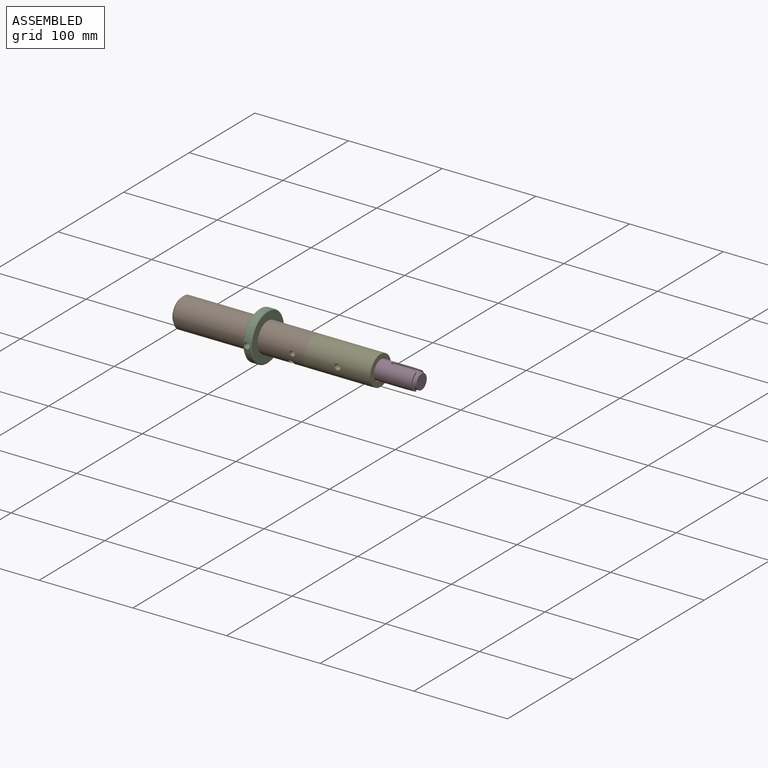
[diagram: assembled view]
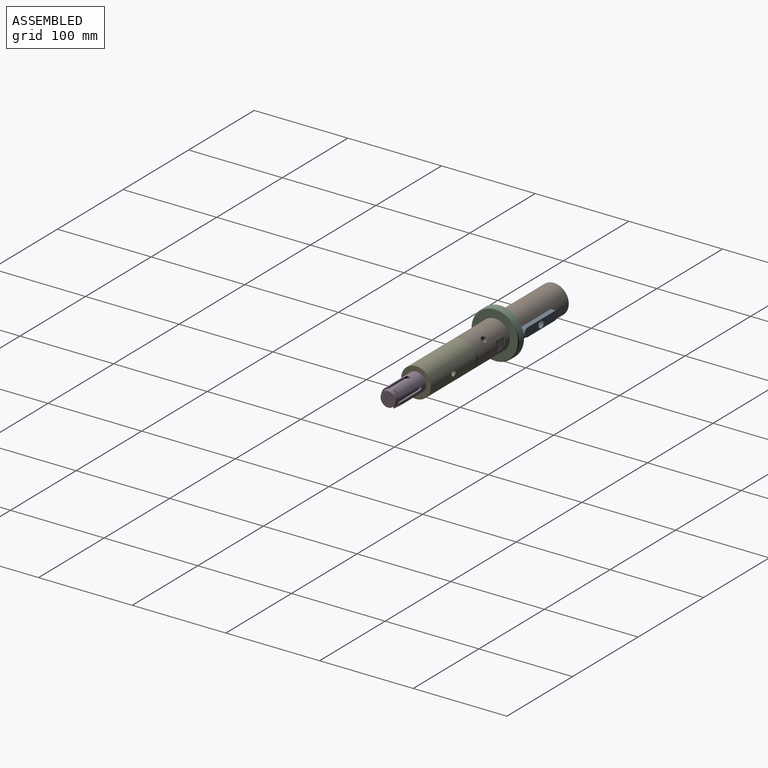
[diagram: assembled view, second angle]
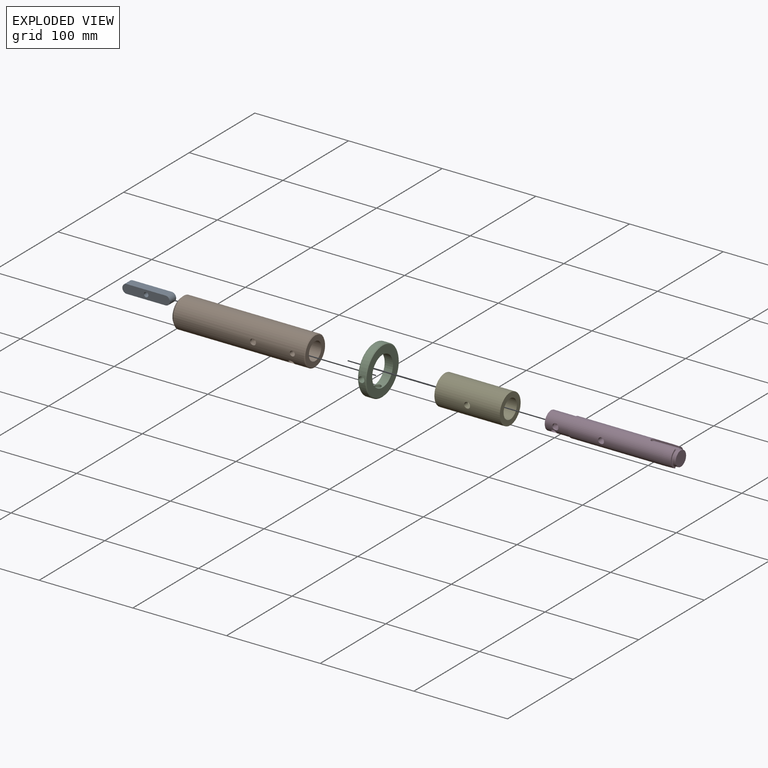
[diagram: exploded view]
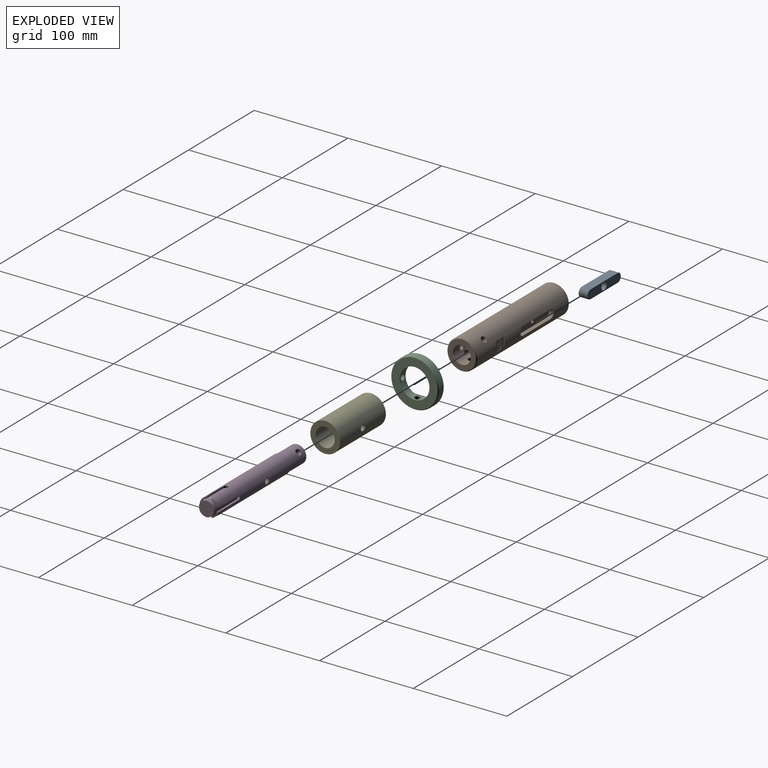
[diagram: exploded view, second angle]
ASSEMBLY  parts=5 mates=7
PART A: 9 faces, bbox 50.8x9.5x9.5 mm
  f0: plane 42.57x9.49mm, normal (0,1,0), area 403.8mm2, adj f1,f3,f4,f5
  f1: cylinder r=4.78mm len=9.49mm, axis (0,0,-1), area 129.9mm2, adj f0,f2,f4,f5
  f2: plane 42.57x9.49mm, normal (0,-1,0), area 403.8mm2, adj f1,f3,f4,f5
  f3: cylinder r=4.78mm len=9.49mm, axis (0,0,-1), area 129.9mm2, adj f0,f2,f4,f5
  f4: plane 50.8x9.47mm, normal (0,0,1), area 444.2mm2, adj f0,f1,f2,f3,f8
  f5: plane 50.8x9.47mm, normal (0,0,-1), area 413.8mm2, adj f0,f1,f2,f3,f6
  f6: cylinder r=3.94mm len=7.87mm, axis (0,0,-1), area 129.7mm2, adj f5,f7
  f7: plane 7.87x7.87mm, normal (0,0,-1), area 30.4mm2, adj f6,f8
  f8: cylinder r=2.41mm len=4.83mm, axis (0,0,-1), area 64.3mm2, adj f4,f7
PART B: 65 faces, bbox 143x31.8x31.8 mm
  f0: cylinder r=15.88mm len=139.7mm, axis (-1,0,0), area 13146.7mm2, adj f2,f3,f6,f7,f8,f9,f11,f12
  f1: cylinder r=9.53mm len=25.4mm, axis (1,0,0), area 1409.6mm2, adj f3,f4,f12,f13,f61,f62
  f2: plane 12.7x11.18mm, normal (0,1,0), area 105.7mm2, adj f0,f14,f15,f16,f17,f18,f19,f20
  f3: cylinder r=3.17mm len=9.37mm, axis (0,-0.71,-0.71), area 128.9mm2, adj f0,f1
  f4: plane 30.23x30.23mm, normal (1,0,0), area 432.5mm2, adj f1,f56
  f5: plane 26.67x26.67mm, normal (-1,0,0), area 558.6mm2, adj f11
  f6: plane 42.57x4.36mm, normal (0,0,-1), area 185.5mm2, adj f0,f7,f9,f10
  f7: cylinder r=4.78mm len=9.47mm, axis (0,1,0), area 65mm2, adj f0,f6,f8,f10
  f8: plane 42.57x4.36mm, normal (0,0,1), area 185.5mm2, adj f0,f7,f9,f10
  f9: cylinder r=4.78mm len=9.47mm, axis (0,1,0), area 65mm2, adj f0,f6,f8,f10
  f10: plane 50.8x9.47mm, normal (0,1,0), area 453.1mm2, adj f6,f7,f8,f9,f64
  f11: cone r=15.88mm half-angle=45deg, axis (1,0,0), area 329.6mm2, adj f0,f5
  f12: cylinder r=3.17mm len=9.37mm, axis (0,-0.71,-0.71), area 128.9mm2, adj f0,f1
  f13: plane 19.05x19.05mm, normal (1,0,0), area 285mm2, adj f1
  f14: plane 11.18x1.02mm, normal (-1,0,0), area 7.6mm2, adj f0,f2
  f15: plane 11.18x1.02mm, normal (1,0,0), area 7.6mm2, adj f0,f2
  f16: plane 0.92x0.25mm, normal (0,0,1), area 0.2mm2, adj f2,f17,f35,f36
  f17: extruded ~2.14x0.36mm, area 0.6mm2, adj f2,f16,f18,f36
  f18: extruded ~2.03x0.57mm, area 0.5mm2, adj f2,f17,f19,f36
  f19: extruded ~1.56x0.72mm, area 0.5mm2, adj f2,f18,f20,f36
  f20: extruded ~1.24x0.43mm, area 0.3mm2, adj f2,f19,f21,f36
  f21: extruded ~1.7x0.94mm, area 0.5mm2, adj f2,f20,f22,f36
  f22: extruded ~1.4x0.69mm, area 0.4mm2, adj f2,f21,f23,f36
  f23: extruded ~0.85x0.34mm, area 0.2mm2, adj f2,f22,f24,f36
  f24: extruded ~1.51x1.08mm, area 0.5mm2, adj f2,f23,f25,f36
  f25: extruded ~1.86x0.4mm, area 0.5mm2, adj f2,f24,f26,f36
  f26: plane 0.85x0.33mm, normal (0.36,0,-0.93), area 0.2mm2, adj f2,f25,f27,f36
  f27: extruded ~2.15x0.4mm, area 0.6mm2, adj f2,f26,f28,f36
  f28: extruded ~1.82x0.51mm, area 0.5mm2, adj f2,f27,f29,f36
  f29: extruded ~1.41x0.66mm, area 0.4mm2, adj f2,f28,f30,f36
  f30: extruded ~1.36x0.47mm, area 0.4mm2, adj f2,f29,f31,f36
  f31: extruded ~1.54x0.9mm, area 0.5mm2, adj f2,f30,f32,f36
  f32: extruded ~1.48x0.69mm, area 0.4mm2, adj f2,f31,f33,f36
  f33: extruded ~0.83x0.36mm, area 0.2mm2, adj f2,f32,f34,f36
  f34: extruded ~1.81x1.24mm, area 0.6mm2, adj f2,f33,f35,f36
  f35: extruded ~2.14x0.44mm, area 0.6mm2, adj f2,f16,f34,f36
  f36: plane 7.77x4.89mm, normal (0,1,0), area 14.4mm2, adj f16,f17,f18,f19,f20,f21,f22,f23
  f37: plane 0.8x0.25mm, normal (1,0,0), area 0.2mm2, adj f2,f38,f54,f55
  f38: plane 6.61x1.44mm, normal (0.21,0,-0.98), area 1.7mm2, adj f2,f37,f39,f55
  f39: plane 0.25x0.04mm, normal (1,0,0), area 0mm2, adj f2,f38,f40,f55
  f40: extruded ~2.1x0.25mm, area 0.5mm2, adj f2,f39,f41,f55
  f41: plane 4.52x0.25mm, normal (0,0,1), area 1.1mm2, adj f2,f40,f42,f55
  f42: plane 0.78x0.25mm, normal (1,0,0), area 0.2mm2, adj f2,f41,f43,f55
  f43: plane 7.56x0.25mm, normal (0,0,-1), area 1.9mm2, adj f2,f42,f44,f55
  f44: plane 1.28x0.25mm, normal (-1,0,0), area 0.3mm2, adj f2,f43,f45,f55
  f45: plane 6.16x1.28mm, normal (-0.2,0,0.98), area 1.6mm2, adj f2,f44,f46,f55
  f46: plane 0.25x0.03mm, normal (-1,0,0), area 0mm2, adj f2,f45,f47,f55
  f47: plane 6.16x1.29mm, normal (-0.21,0,-0.98), area 1.6mm2, adj f2,f46,f48,f55
  f48: plane 1.3x0.25mm, normal (-1,0,0), area 0.3mm2, adj f2,f47,f49,f55
  f49: plane 7.56x0.25mm, normal (0,0,1), area 1.9mm2, adj f2,f48,f50,f55
  f50: plane 0.79x0.25mm, normal (1,0,0), area 0.2mm2, adj f2,f49,f51,f55
  f51: plane 4.58x0.25mm, normal (0,0,-1), area 1.2mm2, adj f2,f50,f52,f55
  f52: extruded ~2.02x0.25mm, area 0.5mm2, adj f2,f51,f53,f55
  f53: plane 0.25x0.04mm, normal (1,0,0), area 0mm2, adj f2,f52,f54,f55
  f54: plane 6.6x1.46mm, normal (0.22,0,0.98), area 1.7mm2, adj f2,f37,f53,f55
  f55: plane 7.56x5.18mm, normal (0,1,0), area 21.9mm2, adj f37,f38,f39,f40,f41,f42,f43,f44
  f56: cone r=15.11mm half-angle=45deg, axis (-1,0,0), area 104.9mm2, adj f0,f4
  f57: cylinder r=3.17mm len=6.35mm, axis (0,0,-1), area 53.9mm2, adj f0,f58
  f58: cone r=0mm half-angle=59deg, axis (0,0,-1), area 36.9mm2, adj f57
  f59: cylinder r=3.17mm len=6.35mm, axis (0,-1,0), area 53.9mm2, adj f0,f60
  f60: cone r=0mm half-angle=59deg, axis (0,-1,0), area 36.9mm2, adj f59
  f61: cylinder r=2.71mm len=6.74mm, axis (0,0,-1), area 109.3mm2, adj f0,f1
  f62: cylinder r=2.71mm len=6.74mm, axis (0,-1,0), area 109.3mm2, adj f0,f1
  f63: cone r=0mm half-angle=59deg, axis (0,1,0), area 10.9mm2, adj f64
  f64: cylinder r=1.73mm len=7.88mm, axis (0,1,0), area 85.5mm2, adj f10,f63
PART C: 8 faces, bbox 8.9x50.8x50.8 mm
  f0: cylinder r=15.88mm len=31.75mm, axis (-1,0,0), area 822.9mm2, adj f2,f3,f4,f5
  f1: cylinder r=25.4mm len=50.8mm, axis (-1,0,0), area 1112.2mm2, adj f4,f5,f6,f7
  f2: plane 49.28x49.28mm, normal (1,0,0), area 1115.3mm2, adj f0,f7
  f3: plane 49.28x49.28mm, normal (-1,0,0), area 1115.3mm2, adj f0,f6
  f4: cylinder r=3.17mm len=9.85mm, axis (0,-1,0), area 191.2mm2, adj f0,f1
  f5: cylinder r=3.17mm len=9.85mm, axis (0,0,1), area 191.2mm2, adj f0,f1
  f6: cone r=25.4mm half-angle=45deg, axis (1,0,0), area 169.4mm2, adj f1,f3
  f7: cone r=24.64mm half-angle=45deg, axis (-1,0,0), area 169.4mm2, adj f1,f2
PART D: 33 faces, bbox 138.7x20.4x20.4 mm
  f0: cylinder r=9.53mm len=25.4mm, axis (1,0,0), area 1387.9mm2, adj f12,f15,f17,f29,f31
  f1: plane 7.1x6.66mm, normal (1,0,0), area 11.2mm2, adj f5,f9,f11,f27
  f2: cylinder r=10.16mm len=100.6mm, axis (1,0,0), area 6056.8mm2, adj f5,f6,f7,f8,f9,f10,f15,f16
  f3: plane 7.05x6.5mm, normal (1,0,0), area 11mm2, adj f7,f10,f11,f26
  f4: plane 18.96x7.11mm, normal (1,0,0), area 28.4mm2, adj f6,f8,f11,f28
  f5: plane 25.41x1.91mm, normal (0.01,0,-1), area 45.3mm2, adj f1,f2,f11,f18,f19,f27
  f6: plane 25.38x1.91mm, normal (0.01,0,1), area 45.3mm2, adj f2,f4,f18,f19,f20,f28
  f7: plane 25.39x1.92mm, normal (0.02,0,-1), area 44.7mm2, adj f2,f3,f11,f21,f22,f26
  f8: plane 25.4x1.9mm, normal (0.01,0,1), area 45.9mm2, adj f2,f4,f11,f21,f22,f28
  f9: plane 31.66x2.07mm, normal (0.01,-1,0), area 61.4mm2, adj f1,f2,f11,f23,f24,f27
  f10: plane 31.55x2.07mm, normal (0.01,1,0), area 61.4mm2, adj f2,f3,f23,f24,f25,f26
  f11: torus R=8.69mm, axis (1,0,0), area 49.8mm2, adj f1,f3,f4,f5,f7,f8,f9,f14
  f12: plane 19.05x19.05mm, normal (-1,0,0), area 285mm2, adj f0
  f13: plane 15.85x15.85mm, normal (1,0,0), area 197.3mm2, adj f14
  f14: cylinder r=7.92mm len=15.85mm, axis (1,0,0), area 151.8mm2, adj f11,f13
  f15: plane 20.32x20.32mm, normal (-1,0,0), area 39.3mm2, adj f0,f2
  f16: cylinder r=3.17mm len=20.32mm, axis (0,0,-1), area 395.3mm2, adj f2
  f17: cylinder r=3.17mm len=17.96mm, axis (0,0.71,-0.71), area 369.2mm2, adj f0
  f18: cylinder r=2.6mm len=5.21mm, axis (0,1,0), area 16.7mm2, adj f2,f5,f6,f19
  f19: plane 28.57x5.92mm, normal (0,1,0), area 153.5mm2, adj f5,f6,f11,f18,f20
  f20: plane 0.23x0.03mm, normal (0,0,1), area 0mm2, adj f6,f11,f19
  f21: cylinder r=2.6mm len=5.21mm, axis (0,-1,0), area 16.8mm2, adj f2,f7,f8,f22
  f22: plane 28.57x5.92mm, normal (0,-1,0), area 153.5mm2, adj f7,f8,f11,f21
  f23: cylinder r=1.96mm len=3.81mm, axis (0,0,1), area 11.2mm2, adj f2,f9,f10,f24
  f24: plane 33.59x4.7mm, normal (0,0,1), area 140mm2, adj f9,f10,f11,f23,f25
  f25: plane 0.42x0.11mm, normal (0,1,0), area 0mm2, adj f10,f11,f24
  f26: revolved ~8.87x7.82mm, area 92mm2, adj f2,f3,f7,f10
  f27: revolved ~8.87x7.62mm, area 93.3mm2, adj f1,f2,f5,f9
  f28: revolved ~19.56x8.87mm, area 228.8mm2, adj f2,f4,f6,f8
  f29: cylinder r=3.26mm len=6.53mm, axis (0,0,-1), area 46.2mm2, adj f0,f30
  f30: cone r=0mm half-angle=59deg, axis (0,0,-1), area 39mm2, adj f29
  f31: cylinder r=3.26mm len=6.53mm, axis (0,1,0), area 46.2mm2, adj f0,f32
  f32: cone r=0mm half-angle=59deg, axis (0,1,0), area 39mm2, adj f31
PART E: 6 faces, bbox 31.8x69.9x31.8 mm
  f0: cylinder r=10.16mm len=69.85mm, axis (0,1,0), area 4394.9mm2, adj f2,f3,f4,f5
  f1: cylinder r=15.88mm len=69.85mm, axis (0,1,0), area 6903.7mm2, adj f2,f3,f4,f5
  f2: plane 31.75x31.75mm, normal (0,-1,0), area 467.4mm2, adj f0,f1
  f3: plane 31.75x31.75mm, normal (0,1,0), area 467.4mm2, adj f0,f1
  f4: cylinder r=3.17mm len=6.35mm, axis (0,0,1), area 115.9mm2, adj f0,f1
  f5: cylinder r=3.17mm len=6.35mm, axis (0,0,1), area 115.9mm2, adj f0,f1
PLACE A rot(axis=(1,0,0),90deg) t=(169.75,-4.61,-16.43)mm
PLACE B rot(axis=(0,0.14,0.99),0deg) t=(118.95,-24.89,-16.43)mm
PLACE C rot(axis=(1,0,0),90deg) t=(202.64,-24.89,-16.43)mm
PLACE D rot(axis=(-1,0,0),90deg) t=(310.59,-24.38,-15.92)mm
PLACE E rot(axis=(0.58,0.58,-0.58),120deg) t=(331.8,-24.89,-16.43)mm
MATE planar B.f1 <-> D.f0  axis (1,0,0) through (236.55,-24.89,-16.43)mm
MATE fastened D.f17 <-> B.f3  axis (0,-0.71,-0.71) through (244.43,-31.21,-22.74)mm
MATE planar B.f0 <-> E.f1  axis (1,0,0) through (261.95,-24.89,-16.43)mm
MATE cylindrical B.f59 <-> C.f5  axis (0,-1,0) through (206.71,-40.78,-16.43)mm
MATE cylindrical C.f0 <-> B.f0  axis (-1,0,0) through (202.64,-24.89,-16.43)mm
MATE fastened A.f3 <-> B.f9  axis (0,-1,0) through (190.37,-14.09,-16.43)mm
MATE cylindrical B.f0 <-> E.f1  axis (-1,0,0) through (191.34,-24.89,-16.43)mm
